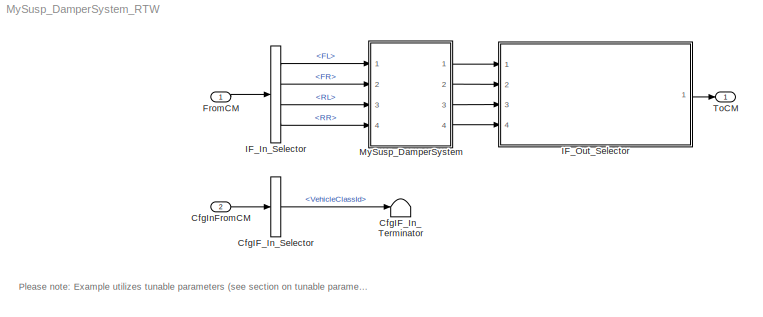
MODEL MySusp_DamperSystem_RTW
KIND model
CONFIG InitFcn = vehicle = 'Car'; if ~length(which('cmself')), cmenv; end\nMySusp_DamperSystem_RTW_bus
CONFIG PreLoadFcn = vehicle = 'Car'; if ~length(which('cmself')), cmenv; end\nMySusp_DamperSystem_RTW_bus\nMySusp_DamperSystem_RTW_params
BLOCK [BusSelector] CfgIF_In_Selector
  OutputSignals = VehicleClassId
  Ports = [1, 1]
  SID = 9
BLOCK [Terminator] CfgIF_In_Terminator
  SID = 10
BLOCK [Inport] CfgInFromCM
  OutDataTypeStr = Bus: cmSusp_DamperSystemCfgIn
  Port = 2
  SID = 8
BLOCK [Inport] FromCM
  OutDataTypeStr = Bus: cmSusp_DamperSystemIn
  SID = 1
BLOCK [BusSelector] IF_In_Selector
  OutputSignals = vel.FL,vel.FR,vel.RL,vel.RR
  Ports = [1, 4]
  SID = 2
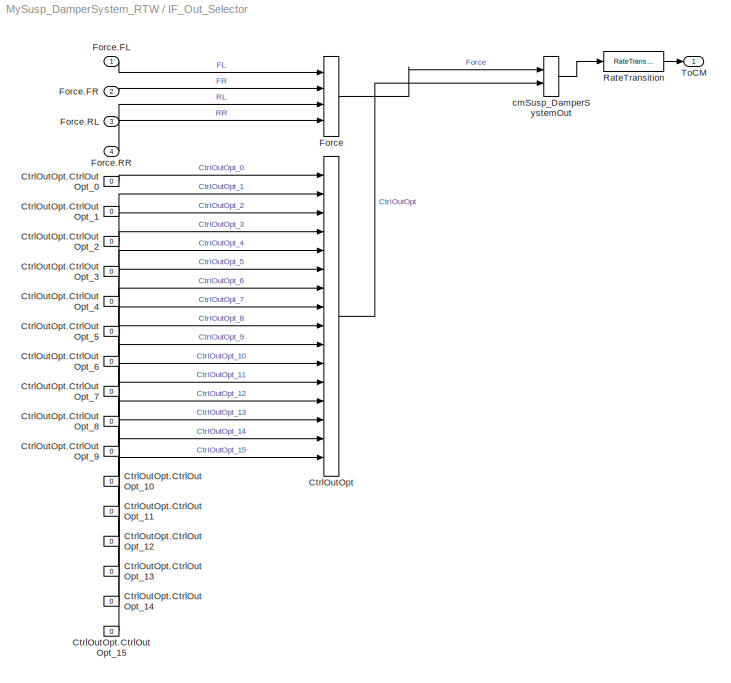
BLOCK [SubSystem] IF_Out_Selector
  OpenFcn = cmSignalSelect('SignalSelection_CB',gcb)
  Ports = [4, 1]
  RequestExecContextInheritance = off
  SID = 5
  UserData = DataTag0
  UserDataPersistent = on
BLOCK [BusCreator] IF_Out_Selector/CtrlOutOpt
  InheritFromInputs = on
  Inputs = 16
  Ports = [16, 1]
  SID = 17
BLOCK [Constant] IF_Out_Selector/CtrlOutOpt.CtrlOutOpt_0
  SID = 18
  Value = 0
BLOCK [Constant] IF_Out_Selector/CtrlOutOpt.CtrlOutOpt_1
  SID = 19
  Value = 0
BLOCK [Constant] IF_Out_Selector/CtrlOutOpt.CtrlOutOpt_10
  SID = 28
  Value = 0
BLOCK [Constant] IF_Out_Selector/CtrlOutOpt.CtrlOutOpt_11
  SID = 29
  Value = 0
BLOCK [Constant] IF_Out_Selector/CtrlOutOpt.CtrlOutOpt_12
  SID = 30
  Value = 0
BLOCK [Constant] IF_Out_Selector/CtrlOutOpt.CtrlOutOpt_13
  SID = 31
  Value = 0
BLOCK [Constant] IF_Out_Selector/CtrlOutOpt.CtrlOutOpt_14
  SID = 32
  Value = 0
BLOCK [Constant] IF_Out_Selector/CtrlOutOpt.CtrlOutOpt_15
  SID = 33
  Value = 0
BLOCK [Constant] IF_Out_Selector/CtrlOutOpt.CtrlOutOpt_2
  SID = 20
  Value = 0
BLOCK [Constant] IF_Out_Selector/CtrlOutOpt.CtrlOutOpt_3
  SID = 21
  Value = 0
BLOCK [Constant] IF_Out_Selector/CtrlOutOpt.CtrlOutOpt_4
  SID = 22
  Value = 0
BLOCK [Constant] IF_Out_Selector/CtrlOutOpt.CtrlOutOpt_5
  SID = 23
  Value = 0
BLOCK [Constant] IF_Out_Selector/CtrlOutOpt.CtrlOutOpt_6
  SID = 24
  Value = 0
BLOCK [Constant] IF_Out_Selector/CtrlOutOpt.CtrlOutOpt_7
  SID = 25
  Value = 0
BLOCK [Constant] IF_Out_Selector/CtrlOutOpt.CtrlOutOpt_8
  SID = 26
  Value = 0
BLOCK [Constant] IF_Out_Selector/CtrlOutOpt.CtrlOutOpt_9
  SID = 27
  Value = 0
BLOCK [BusCreator] IF_Out_Selector/Force
  InheritFromInputs = on
  Inputs = 4
  Ports = [4, 1]
  SID = 12
BLOCK [Inport] IF_Out_Selector/Force.FL
  SID = 119
BLOCK [Inport] IF_Out_Selector/Force.FR
  Port = 2
  SID = 120
BLOCK [Inport] IF_Out_Selector/Force.RL
  Port = 3
  SID = 121
BLOCK [Inport] IF_Out_Selector/Force.RR
  Port = 4
  SID = 122
BLOCK [RateTransition] IF_Out_Selector/RateTransition
  OutPortSampleTime = str2num(get_param(bdroot,'FixedStep'))
  SID = 6
BLOCK [Outport] IF_Out_Selector/ToCM
  SID = 7
BLOCK [BusCreator] IF_Out_Selector/cmSusp_DamperSystemOut
  InheritFromInputs = on
  Inputs = 2
  Ports = [2, 1]
  SID = 11
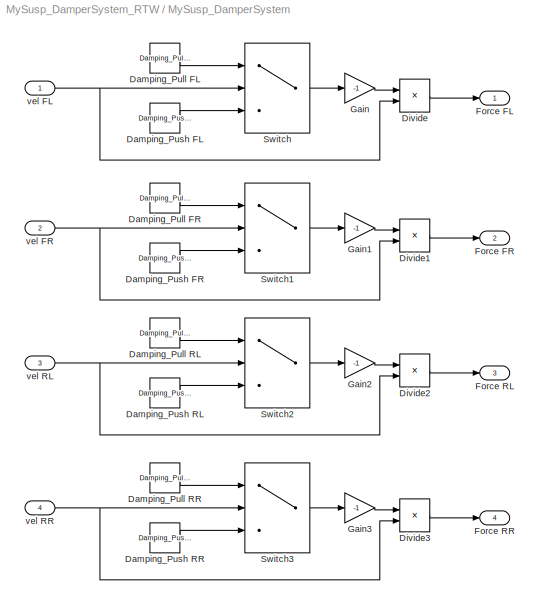
BLOCK [SubSystem] MySusp_DamperSystem
  Ports = [4, 4]
  RequestExecContextInheritance = off
  SID = 90
BLOCK [Constant] MySusp_DamperSystem/Damping_Pull FL
  SID = 95
  Value = Damping_Pull_FL
BLOCK [Constant] MySusp_DamperSystem/Damping_Pull FR
  SID = 96
  Value = Damping_Pull_FR
BLOCK [Constant] MySusp_DamperSystem/Damping_Pull RL
  SID = 97
  Value = Damping_Pull_RL
BLOCK [Constant] MySusp_DamperSystem/Damping_Pull RR
  SID = 98
  Value = Damping_Pull_RR
BLOCK [Constant] MySusp_DamperSystem/Damping_Push FL
  SID = 99
  Value = Damping_Push_FL
BLOCK [Constant] MySusp_DamperSystem/Damping_Push FR
  SID = 100
  Value = Damping_Push_FR
BLOCK [Constant] MySusp_DamperSystem/Damping_Push RL
  SID = 101
  Value = Damping_Push_RL
BLOCK [Constant] MySusp_DamperSystem/Damping_Push RR
  SID = 102
  Value = Damping_Push_RR
BLOCK [Product] MySusp_DamperSystem/Divide
  Inputs = **
  Ports = [2, 1]
  SID = 103
BLOCK [Product] MySusp_DamperSystem/Divide1
  Inputs = **
  Ports = [2, 1]
  SID = 104
BLOCK [Product] MySusp_DamperSystem/Divide2
  Inputs = **
  Ports = [2, 1]
  SID = 105
BLOCK [Product] MySusp_DamperSystem/Divide3
  Inputs = **
  Ports = [2, 1]
  SID = 106
BLOCK [Outport] MySusp_DamperSystem/Force FL
  SID = 115
  VectorParamsAs1DForOutWhenUnconnected = off
BLOCK [Outport] MySusp_DamperSystem/Force FR
  Port = 2
  SID = 116
  VectorParamsAs1DForOutWhenUnconnected = off
BLOCK [Outport] MySusp_DamperSystem/Force RL
  Port = 3
  SID = 117
  VectorParamsAs1DForOutWhenUnconnected = off
BLOCK [Outport] MySusp_DamperSystem/Force RR
  Port = 4
  SID = 118
  VectorParamsAs1DForOutWhenUnconnected = off
BLOCK [Gain] MySusp_DamperSystem/Gain
  Gain = -1
  SID = 107
BLOCK [Gain] MySusp_DamperSystem/Gain1
  Gain = -1
  SID = 108
BLOCK [Gain] MySusp_DamperSystem/Gain2
  Gain = -1
  SID = 109
BLOCK [Gain] MySusp_DamperSystem/Gain3
  Gain = -1
  SID = 110
BLOCK [Switch] MySusp_DamperSystem/Switch
  InputSameDT = off
  SID = 111
  SaturateOnIntegerOverflow = off
BLOCK [Switch] MySusp_DamperSystem/Switch1
  InputSameDT = off
  SID = 112
  SaturateOnIntegerOverflow = off
BLOCK [Switch] MySusp_DamperSystem/Switch2
  InputSameDT = off
  SID = 113
  SaturateOnIntegerOverflow = off
BLOCK [Switch] MySusp_DamperSystem/Switch3
  InputSameDT = off
  SID = 114
  SaturateOnIntegerOverflow = off
BLOCK [Inport] MySusp_DamperSystem/vel FL
  SID = 91
BLOCK [Inport] MySusp_DamperSystem/vel FR
  Port = 2
  SID = 92
BLOCK [Inport] MySusp_DamperSystem/vel RL
  Port = 3
  SID = 93
BLOCK [Inport] MySusp_DamperSystem/vel RR
  Port = 4
  SID = 94
BLOCK [Outport] ToCM
  OutDataTypeStr = Bus: cmSusp_DamperSystemOut
  SID = 4
ANNOTATION (root): \n \n Please note: Example utilizes tunable parameters (see section on tunable parameters in the Programmers Guide). \n \n For user models of the class Susp_DamperSystem at least one modelclass-specific parameter (*.TimeInvariant) needs to be specified in the "Modelclass-specific Parameters" dialog of the CarMaker GUI.
LINE CfgIF_In_Selector:1 -> CfgIF_In_Terminator:1
LINE CfgInFromCM:1 -> CfgIF_In_Selector:1
LINE FromCM:1 -> IF_In_Selector:1
LINE IF_In_Selector:1 -> MySusp_DamperSystem:1
LINE IF_In_Selector:2 -> MySusp_DamperSystem:2
LINE IF_In_Selector:3 -> MySusp_DamperSystem:3
LINE IF_In_Selector:4 -> MySusp_DamperSystem:4
LINE IF_Out_Selector/CtrlOutOpt.CtrlOutOpt_0:1 -> IF_Out_Selector/CtrlOutOpt:1
LINE IF_Out_Selector/CtrlOutOpt.CtrlOutOpt_10:1 -> IF_Out_Selector/CtrlOutOpt:11
LINE IF_Out_Selector/CtrlOutOpt.CtrlOutOpt_11:1 -> IF_Out_Selector/CtrlOutOpt:12
LINE IF_Out_Selector/CtrlOutOpt.CtrlOutOpt_12:1 -> IF_Out_Selector/CtrlOutOpt:13
LINE IF_Out_Selector/CtrlOutOpt.CtrlOutOpt_13:1 -> IF_Out_Selector/CtrlOutOpt:14
LINE IF_Out_Selector/CtrlOutOpt.CtrlOutOpt_14:1 -> IF_Out_Selector/CtrlOutOpt:15
LINE IF_Out_Selector/CtrlOutOpt.CtrlOutOpt_15:1 -> IF_Out_Selector/CtrlOutOpt:16
LINE IF_Out_Selector/CtrlOutOpt.CtrlOutOpt_1:1 -> IF_Out_Selector/CtrlOutOpt:2
LINE IF_Out_Selector/CtrlOutOpt.CtrlOutOpt_2:1 -> IF_Out_Selector/CtrlOutOpt:3
LINE IF_Out_Selector/CtrlOutOpt.CtrlOutOpt_3:1 -> IF_Out_Selector/CtrlOutOpt:4
LINE IF_Out_Selector/CtrlOutOpt.CtrlOutOpt_4:1 -> IF_Out_Selector/CtrlOutOpt:5
LINE IF_Out_Selector/CtrlOutOpt.CtrlOutOpt_5:1 -> IF_Out_Selector/CtrlOutOpt:6
LINE IF_Out_Selector/CtrlOutOpt.CtrlOutOpt_6:1 -> IF_Out_Selector/CtrlOutOpt:7
LINE IF_Out_Selector/CtrlOutOpt.CtrlOutOpt_7:1 -> IF_Out_Selector/CtrlOutOpt:8
LINE IF_Out_Selector/CtrlOutOpt.CtrlOutOpt_8:1 -> IF_Out_Selector/CtrlOutOpt:9
LINE IF_Out_Selector/CtrlOutOpt.CtrlOutOpt_9:1 -> IF_Out_Selector/CtrlOutOpt:10
LINE IF_Out_Selector/CtrlOutOpt:1 -> IF_Out_Selector/cmSusp_DamperSystemOut:2
LINE IF_Out_Selector/Force.FL:1 -> IF_Out_Selector/Force:1
LINE IF_Out_Selector/Force.FR:1 -> IF_Out_Selector/Force:2
LINE IF_Out_Selector/Force.RL:1 -> IF_Out_Selector/Force:3
LINE IF_Out_Selector/Force.RR:1 -> IF_Out_Selector/Force:4
LINE IF_Out_Selector/Force:1 -> IF_Out_Selector/cmSusp_DamperSystemOut:1
LINE IF_Out_Selector/RateTransition:1 -> IF_Out_Selector/ToCM:1
LINE IF_Out_Selector/cmSusp_DamperSystemOut:1 -> IF_Out_Selector/RateTransition:1
LINE IF_Out_Selector:1 -> ToCM:1
LINE MySusp_DamperSystem/Damping_Pull FL:1 -> MySusp_DamperSystem/Switch:1
LINE MySusp_DamperSystem/Damping_Pull FR:1 -> MySusp_DamperSystem/Switch1:1
LINE MySusp_DamperSystem/Damping_Pull RL:1 -> MySusp_DamperSystem/Switch2:1
LINE MySusp_DamperSystem/Damping_Pull RR:1 -> MySusp_DamperSystem/Switch3:1
LINE MySusp_DamperSystem/Damping_Push FL:1 -> MySusp_DamperSystem/Switch:3
LINE MySusp_DamperSystem/Damping_Push FR:1 -> MySusp_DamperSystem/Switch1:3
LINE MySusp_DamperSystem/Damping_Push RL:1 -> MySusp_DamperSystem/Switch2:3
LINE MySusp_DamperSystem/Damping_Push RR:1 -> MySusp_DamperSystem/Switch3:3
LINE MySusp_DamperSystem/Divide1:1 -> MySusp_DamperSystem/Force FR:1
LINE MySusp_DamperSystem/Divide2:1 -> MySusp_DamperSystem/Force RL:1
LINE MySusp_DamperSystem/Divide3:1 -> MySusp_DamperSystem/Force RR:1
LINE MySusp_DamperSystem/Divide:1 -> MySusp_DamperSystem/Force FL:1
LINE MySusp_DamperSystem/Gain1:1 -> MySusp_DamperSystem/Divide1:1
LINE MySusp_DamperSystem/Gain2:1 -> MySusp_DamperSystem/Divide2:1
LINE MySusp_DamperSystem/Gain3:1 -> MySusp_DamperSystem/Divide3:1
LINE MySusp_DamperSystem/Gain:1 -> MySusp_DamperSystem/Divide:1
LINE MySusp_DamperSystem/Switch1:1 -> MySusp_DamperSystem/Gain1:1
LINE MySusp_DamperSystem/Switch2:1 -> MySusp_DamperSystem/Gain2:1
LINE MySusp_DamperSystem/Switch3:1 -> MySusp_DamperSystem/Gain3:1
LINE MySusp_DamperSystem/Switch:1 -> MySusp_DamperSystem/Gain:1
NET MySusp_DamperSystem/vel FL:1 -> MySusp_DamperSystem/Divide:2, MySusp_DamperSystem/Switch:2
NET MySusp_DamperSystem/vel FR:1 -> MySusp_DamperSystem/Divide1:2, MySusp_DamperSystem/Switch1:2
NET MySusp_DamperSystem/vel RL:1 -> MySusp_DamperSystem/Divide2:2, MySusp_DamperSystem/Switch2:2
NET MySusp_DamperSystem/vel RR:1 -> MySusp_DamperSystem/Divide3:2, MySusp_DamperSystem/Switch3:2
LINE MySusp_DamperSystem:1 -> IF_Out_Selector:1
LINE MySusp_DamperSystem:2 -> IF_Out_Selector:2
LINE MySusp_DamperSystem:3 -> IF_Out_Selector:3
LINE MySusp_DamperSystem:4 -> IF_Out_Selector:4
note: NET lines group one-source signal fan-out (src -> all destinations, sorted); 1:1 wires keep LINE
